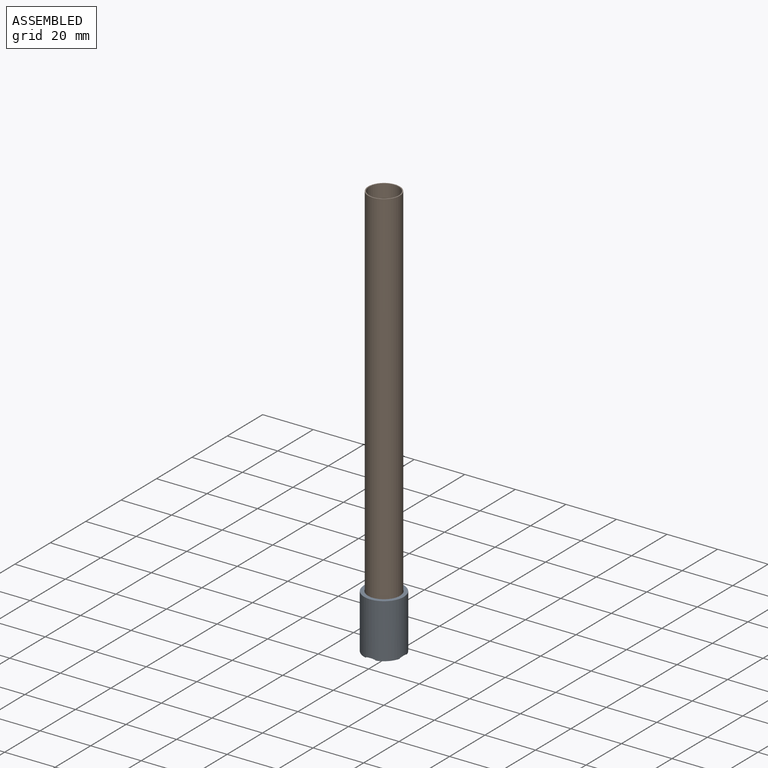
[diagram: assembled view]
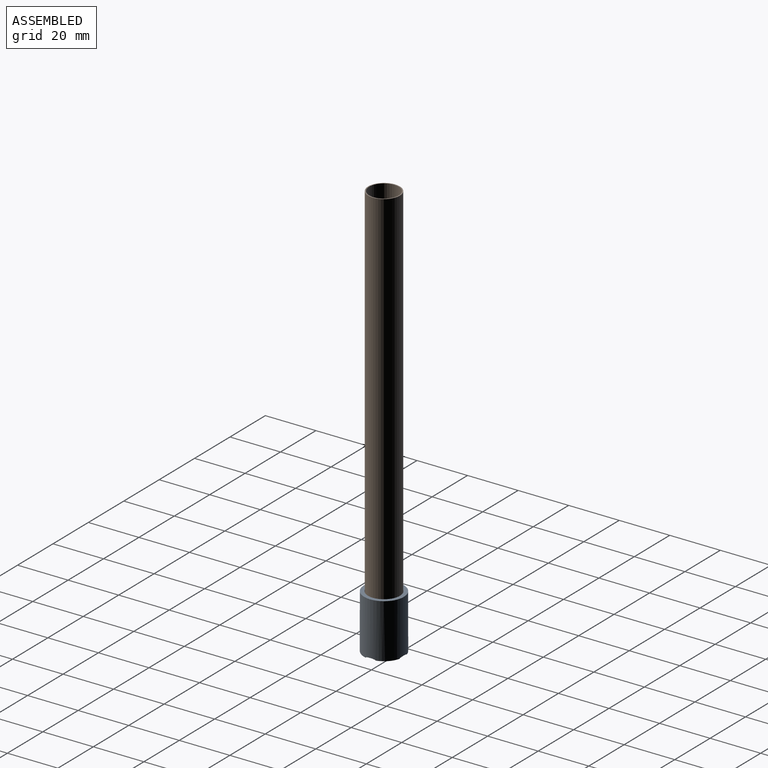
[diagram: assembled view, second angle]
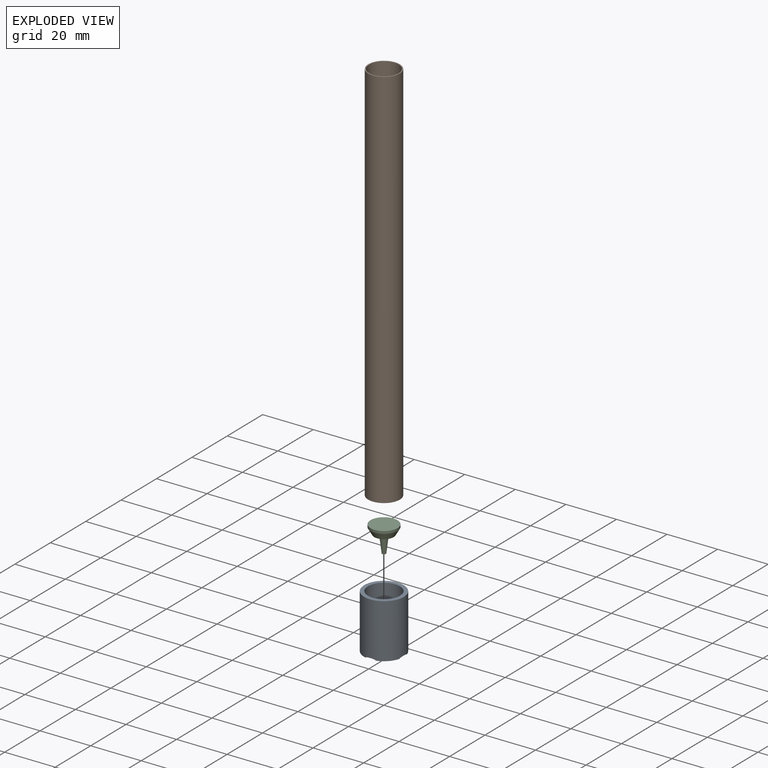
[diagram: exploded view]
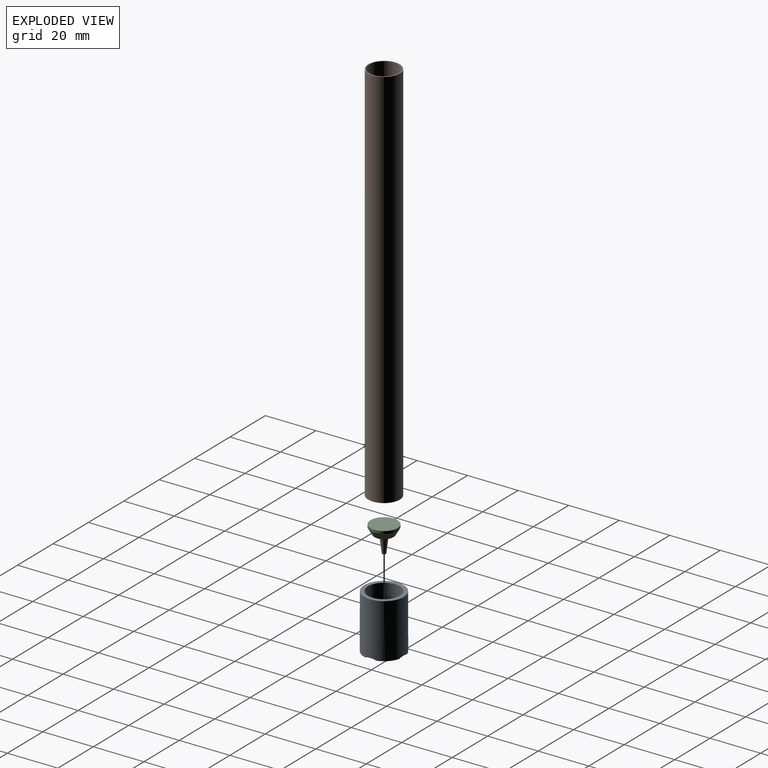
[diagram: exploded view, second angle]
ASSEMBLY  parts=3 mates=3
PART A: 17 faces, bbox 15.7x15.7x21.5 mm
  f0: cylinder r=4.35mm len=8.7mm, axis (0,0,-1), area 75.5mm2, adj f2,f3,f4,f5,f8,f13,f14,f15
  f1: cylinder r=7.85mm len=21.46mm, axis (0,0,-1), area 1052.3mm2, adj f2,f3,f4,f5,f9,f13,f14,f15
  f2: plane 5.59x5.59mm, normal (0,0,-1), area 19.2mm2, adj f0,f1,f13,f16
  f3: plane 5.59x5.59mm, normal (0,0,-1), area 19.2mm2, adj f0,f1,f14,f16
  f4: plane 5.59x5.59mm, normal (0,0,-1), area 19.2mm2, adj f0,f1,f13,f15
  f5: plane 5.59x5.59mm, normal (0,0,-1), area 19.2mm2, adj f0,f1,f14,f15
  f6: cylinder r=6.35mm len=12.7mm, axis (0,0,-1), area 199.5mm2, adj f8,f11
  f7: cylinder r=6.35mm len=12.7mm, axis (0,0,-1), area 373.7mm2, adj f9,f12
  f8: cone r=6.35mm half-angle=30deg, axis (0,0,1), area 134.5mm2, adj f0,f6
  f9: plane 15.7x15.7mm, normal (0,0,1), area 66.9mm2, adj f1,f7
  f10: cylinder r=5.85mm len=11.7mm, axis (0,0,-1), area 18.4mm2, adj f11,f12
  f11: plane 12.7x12.7mm, normal (0,0,-1), area 19.2mm2, adj f6,f10
  f12: cone r=5.85mm half-angle=75deg, axis (0,0,1), area 19.8mm2, adj f7,f10
  f13: extruded ~4x3.99mm, area 15.4mm2, adj f0,f1,f2,f4
  f14: extruded ~4x3.99mm, area 15.4mm2, adj f0,f1,f3,f5
  f15: extruded ~4x3.99mm, area 15.4mm2, adj f0,f1,f4,f5
  f16: extruded ~4x3.99mm, area 15.4mm2, adj f0,f1,f2,f3
PART B: 4 faces, bbox 12.5x12.5x152.4 mm
  f0: cylinder r=5.85mm len=152.4mm, axis (0,0,-1), area 5601.7mm2, adj f2,f3
  f1: cylinder r=6.25mm len=152.4mm, axis (0,0,-1), area 5984.7mm2, adj f2,f3
  f2: plane 12.5x12.5mm, normal (0,0,1), area 15.2mm2, adj f0,f1
  f3: plane 12.5x12.5mm, normal (0,0,-1), area 15.2mm2, adj f0,f1
PART C: 7 faces, bbox 10.7x10.7x10.5 mm
  f0: plane 1.5x1.5mm, normal (0,0,-1), area 1.8mm2, adj f1
  f1: cone r=1.54mm half-angle=7deg, axis (0,0,1), area 46.6mm2, adj f0,f2
  f2: torus R=2.04mm, axis (0,0,-1), area 7.9mm2, adj f1,f3
  f3: plane 7.7x7.7mm, normal (0,0,-1), area 33.6mm2, adj f2,f4
  f4: cone r=5.35mm half-angle=30deg, axis (0,0,1), area 86.7mm2, adj f3,f5
  f5: cylinder r=5.35mm len=10.7mm, axis (0,0,-1), area 33.6mm2, adj f4,f6
  f6: plane 10.7x10.7mm, normal (0,0,1), area 89.9mm2, adj f5
PLACE A t=(-39.49,19.36,-18.33)mm fixed
PLACE B t=(-39.49,19.36,-18.69)mm
PLACE C t=(-39.49,19.36,-20.43)mm
MATE planar B.f1 <-> A.f6  axis (0,0,-1) through (-39.49,19.36,-6.23)mm
MATE slider C.f1 <-> A.f0  axis (0,0,-1) through (-39.49,19.36,-20.43)mm
MATE cylindrical A.f1 <-> B.f1  axis (0,0,-1) through (-39.49,19.36,3.14)mm
